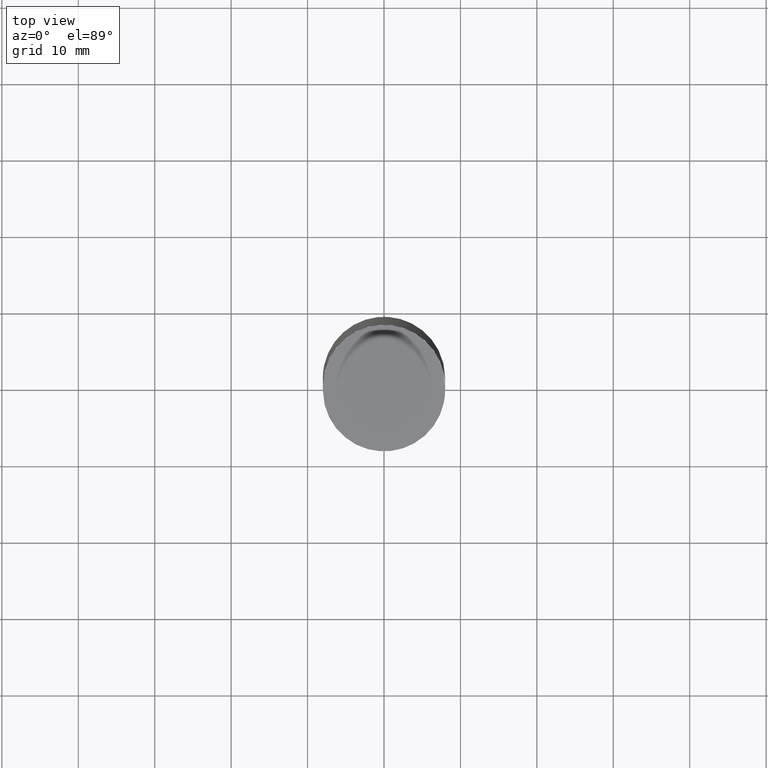
[diagram: clean part render]
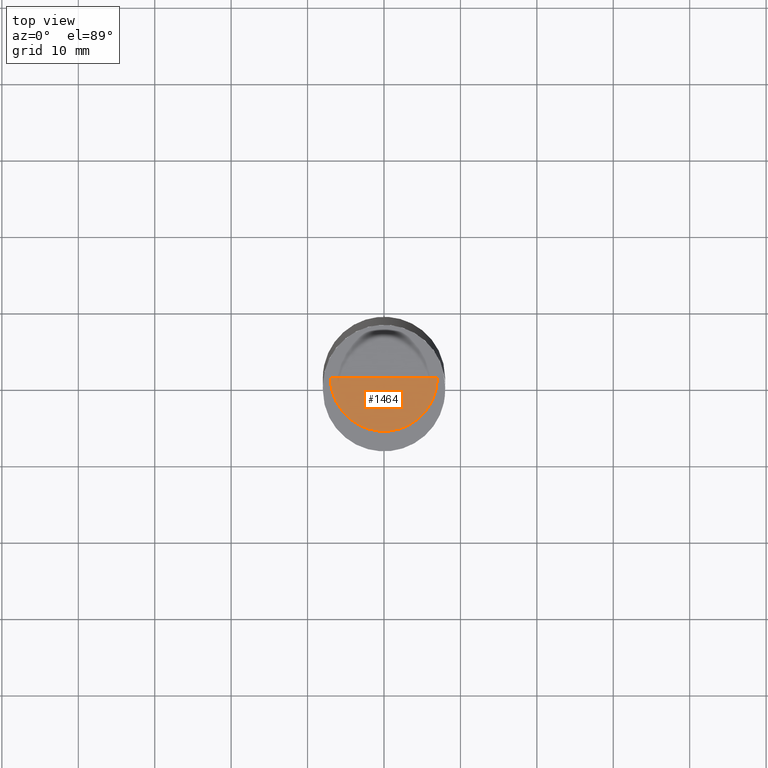
[diagram: same view with one face highlighted and labeled with its STEP entity id]
A machine part, top view. The second image highlights one B-rep face of the part: STEP entity #1464.
In plain terms, the highlighted face is a freeform B-spline surface patch.
Its self-contained STEP definition (entity closure, byte-faithful):
#1195=CARTESIAN_POINT('',(7.0,0.0,61.0));
#1199=CARTESIAN_POINT('',(-7.0,0.0,61.0));
#1200=CARTESIAN_POINT('',(0.0,0.0,61.0));
#1204=CARTESIAN_POINT('',(-7.0,-7.0,61.0));
#1205=CARTESIAN_POINT('',(0.0,-7.0,61.0));
#1206=CARTESIAN_POINT('',(7.0,-7.0,61.0));
#1449=(
BOUNDED_SURFACE()
B_SPLINE_SURFACE(1,2,(
(#1199,#1204,#1205,#1206,#1195),
(#1200,#1200,#1200,#1200,#1200)
), .UNSPECIFIED.,.F.,.F.,.F.)
B_SPLINE_SURFACE_WITH_KNOTS((2,2),(3,2,3),(
0.0,1.0),(
0.0,0.5,1.0), .UNSPECIFIED.)
GEOMETRIC_REPRESENTATION_ITEM()
RATIONAL_B_SPLINE_SURFACE(((1.0,0.707106781187,1.0,0.707106781187,1.0),
(1.0,0.707106781187,1.0,0.707106781187,1.0)
))
REPRESENTATION_ITEM('')
SURFACE()
);
#1450=(
BOUNDED_CURVE()
B_SPLINE_CURVE(2,(#1195,#1206,#1205,#1204,#1199),.UNSPECIFIED.,.F.,.F.)
B_SPLINE_CURVE_WITH_KNOTS((3,2,3),
(0.0,0.5,1.0),.UNSPECIFIED.)
CURVE()
GEOMETRIC_REPRESENTATION_ITEM()
RATIONAL_B_SPLINE_CURVE((1.0,0.707106781187,1.0,0.707106781187,1.0))
REPRESENTATION_ITEM('')
);
#1451=(
BOUNDED_CURVE()
B_SPLINE_CURVE(1,(#1199,#1200),.UNSPECIFIED.,.F.,.F.)
B_SPLINE_CURVE_WITH_KNOTS((2,2),
(0.0,1.0),.UNSPECIFIED.)
CURVE()
GEOMETRIC_REPRESENTATION_ITEM()
RATIONAL_B_SPLINE_CURVE((1.0,1.0))
REPRESENTATION_ITEM('')
);
#1452=(
BOUNDED_CURVE()
B_SPLINE_CURVE(1,(#1200,#1195),.UNSPECIFIED.,.F.,.F.)
B_SPLINE_CURVE_WITH_KNOTS((2,2),
(0.0,1.0),.UNSPECIFIED.)
CURVE()
GEOMETRIC_REPRESENTATION_ITEM()
RATIONAL_B_SPLINE_CURVE((1.0,1.0))
REPRESENTATION_ITEM('')
);
#1453=VERTEX_POINT('',#1195);
#1454=VERTEX_POINT('',#1199);
#1455=VERTEX_POINT('',#1200);
#1456=EDGE_CURVE('',#1453,#1454,#1450,.T.);
#1457=EDGE_CURVE('',#1454,#1455,#1451,.T.);
#1458=EDGE_CURVE('',#1455,#1453,#1452,.T.);
#1459=ORIENTED_EDGE('',*,*,#1456,.T.);
#1460=ORIENTED_EDGE('',*,*,#1457,.T.);
#1461=ORIENTED_EDGE('',*,*,#1458,.T.);
#1462=EDGE_LOOP('',(#1459,#1460,#1461));
#1463=FACE_OUTER_BOUND('',#1462,.T.);
#1464=ADVANCED_FACE('',(#1463),#1449,.T.);